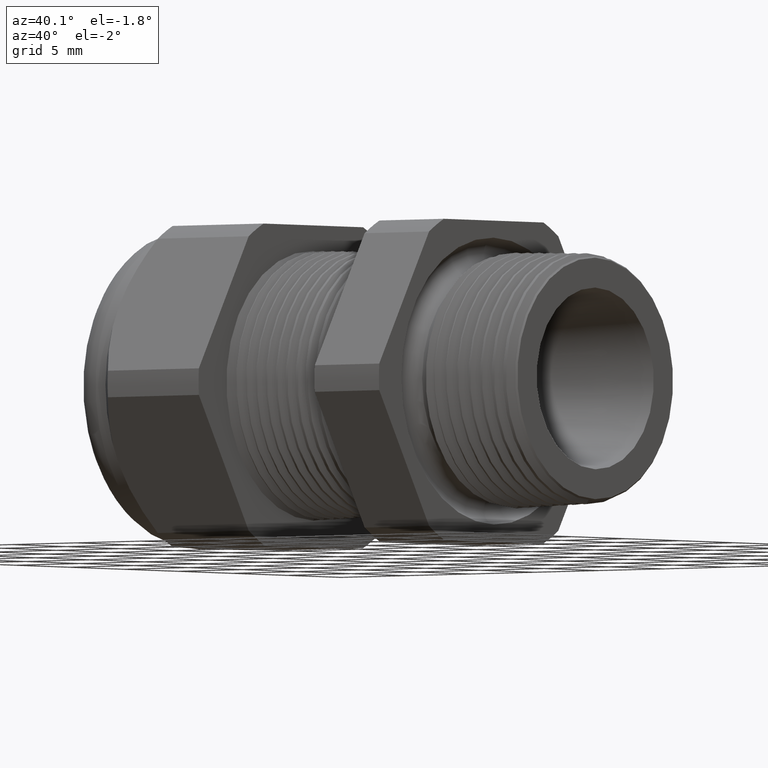
[diagram: clean part render]
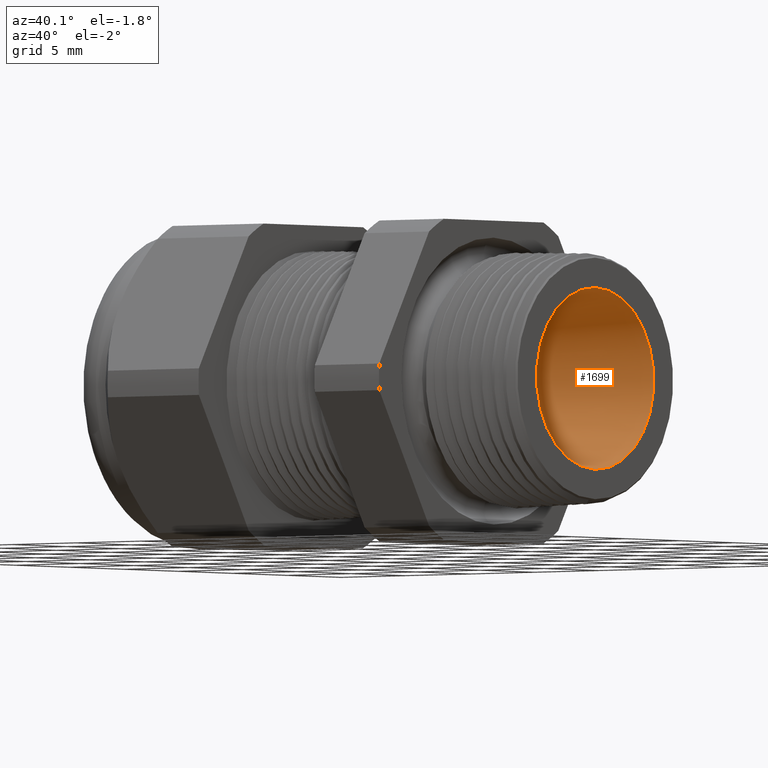
[diagram: same view with one face highlighted and labeled with its STEP entity id]
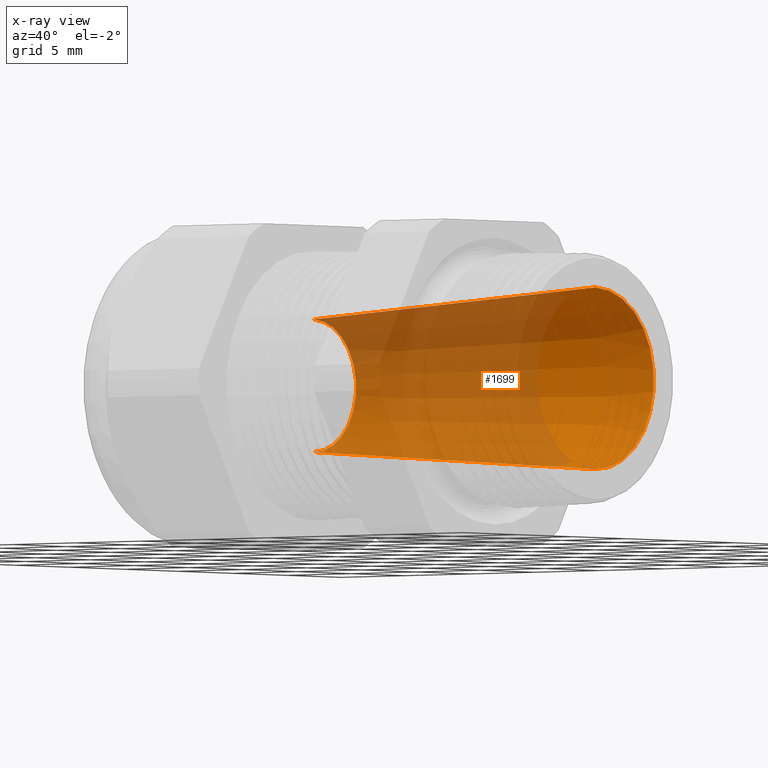
[diagram: x-ray of the same camera — body ghosted, the highlighted face saturated]
A machine part, auxiliary view. The second image highlights one B-rep face of the part: STEP entity #1699.
The next image is the same camera in x-ray: the body ghosted, the highlighted face saturated — about 65% of this face is hidden behind the body in this view.
In plain terms, the highlighted conical surface has half-angle 3.818 deg.
Its self-contained STEP definition (entity closure, byte-faithful):
#895 = CARTESIAN_POINT ( 'NONE',  ( -0.8608661417322833700, 0.0000000000000000000, -0.1550000000000000000 ) ) ;
#900 = CARTESIAN_POINT ( 'NONE',  ( -0.8608661417322833700, 2.250027807345431400E-017, 0.1550000000000000000 ) ) ;
#919 = CARTESIAN_POINT ( 'NONE',  ( 4.443791160244338600E-018, 2.601853076012465100E-017, 0.2124574267310359600 ) ) ;
#924 = CARTESIAN_POINT ( 'NONE',  ( 4.443791160244338600E-018, 0.0000000000000000000, -0.2124574267310359600 ) ) ;
#925 = DIRECTION ( 'NONE',  ( 0.9977800507276000100, 0.0000000000000000000, -0.06659557320143644200 ) ) ;
#926 = VECTOR ( 'NONE', #925, 39.37007874015748100 ) ;
#927 = CARTESIAN_POINT ( 'NONE',  ( -0.8608661417322833700, 0.0000000000000000000, -0.1550000000000000000 ) ) ;
#933 = LINE ( 'NONE', #927, #926 ) ;
#945 = DIRECTION ( 'NONE',  ( 0.9977800507276000100, 8.155605555852239100E-018, 0.06659557320143644200 ) ) ;
#946 = VECTOR ( 'NONE', #945, 39.37007874015748100 ) ;
#947 = CARTESIAN_POINT ( 'NONE',  ( -0.8608661417322833700, 1.898202538678397300E-017, 0.1550000000000000000 ) ) ;
#948 = LINE ( 'NONE', #947, #946 ) ;
#1697 = EDGE_CURVE ( 'NONE', #4930, #4899, #3937, .T. ) ;
#1699 = ADVANCED_FACE ( 'NONE', ( #3932 ), #3931, .F. ) ;
#1700 = EDGE_LOOP ( 'NONE', ( #1701, #1702, #1704, #1705 ) ) ;
#1701 = ORIENTED_EDGE ( 'NONE', *, *, #4920, .F. ) ;
#1702 = ORIENTED_EDGE ( 'NONE', *, *, #1703, .F. ) ;
#1703 = EDGE_CURVE ( 'NONE', #4911, #4908, #4001, .T. ) ;
#1704 = ORIENTED_EDGE ( 'NONE', *, *, #4929, .T. ) ;
#1705 = ORIENTED_EDGE ( 'NONE', *, *, #1697, .T. ) ;
#3929 = CARTESIAN_POINT ( 'NONE',  ( -0.8608661417322833700, 0.0000000000000000000, 0.0000000000000000000 ) ) ;
#3930 = AXIS2_PLACEMENT_3D ( 'NONE', #3929, #4000, #3999 ) ;
#3931 = CONICAL_SURFACE ( 'NONE', #3930, 0.1550000000000000000, 0.06664489660048481000 ) ;
#3932 = FACE_OUTER_BOUND ( 'NONE', #1700, .T. ) ;
#3933 = DIRECTION ( 'NONE',  ( 0.0000000000000000000, 0.0000000000000000000, -1.000000000000000000 ) ) ;
#3934 = DIRECTION ( 'NONE',  ( 1.000000000000000000, 0.0000000000000000000, 0.0000000000000000000 ) ) ;
#3935 = CARTESIAN_POINT ( 'NONE',  ( 4.443791160244338600E-018, 0.0000000000000000000, 0.0000000000000000000 ) ) ;
#3936 = AXIS2_PLACEMENT_3D ( 'NONE', #3935, #3934, #3933 ) ;
#3937 = CIRCLE ( 'NONE', #3936, 0.2124574267310359600 ) ;
#3994 = DIRECTION ( 'NONE',  ( 0.0000000000000000000, 0.0000000000000000000, -1.000000000000000000 ) ) ;
#3996 = DIRECTION ( 'NONE',  ( 1.000000000000000000, 0.0000000000000000000, 0.0000000000000000000 ) ) ;
#3997 = CARTESIAN_POINT ( 'NONE',  ( -0.8608661417322833700, 0.0000000000000000000, 0.0000000000000000000 ) ) ;
#3998 = AXIS2_PLACEMENT_3D ( 'NONE', #3997, #3996, #3994 ) ;
#3999 = DIRECTION ( 'NONE',  ( 0.0000000000000000000, 0.0000000000000000000, -1.000000000000000000 ) ) ;
#4000 = DIRECTION ( 'NONE',  ( 1.000000000000000000, 0.0000000000000000000, 0.0000000000000000000 ) ) ;
#4001 = CIRCLE ( 'NONE', #3998, 0.1550000000000000000 ) ;
#4899 = VERTEX_POINT ( 'NONE', #919 ) ;
#4908 = VERTEX_POINT ( 'NONE', #900 ) ;
#4911 = VERTEX_POINT ( 'NONE', #895 ) ;
#4920 = EDGE_CURVE ( 'NONE', #4908, #4899, #948, .T. ) ;
#4929 = EDGE_CURVE ( 'NONE', #4911, #4930, #933, .T. ) ;
#4930 = VERTEX_POINT ( 'NONE', #924 ) ;